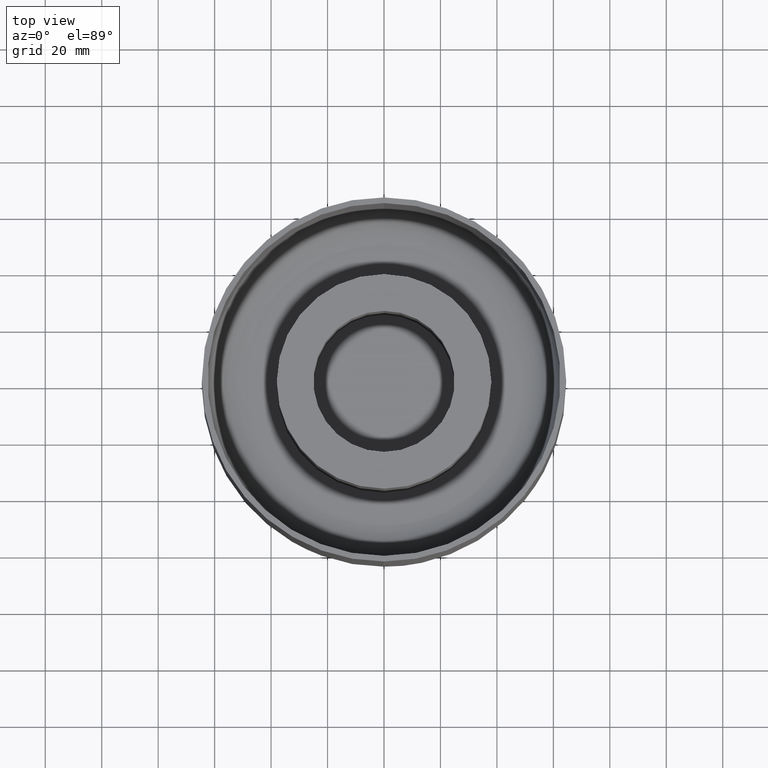
[diagram: clean part render]
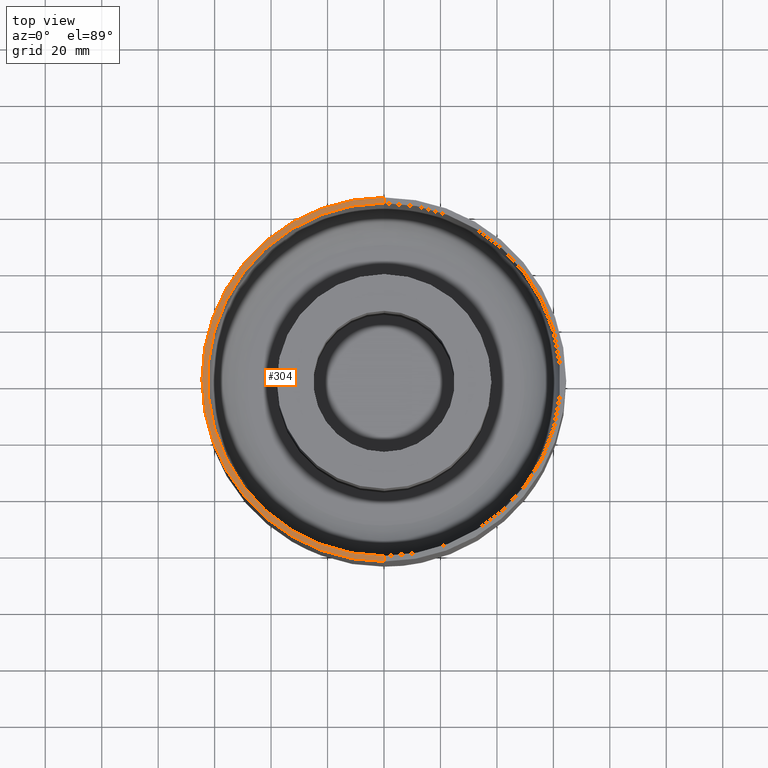
[diagram: same view with one face highlighted and labeled with its STEP entity id]
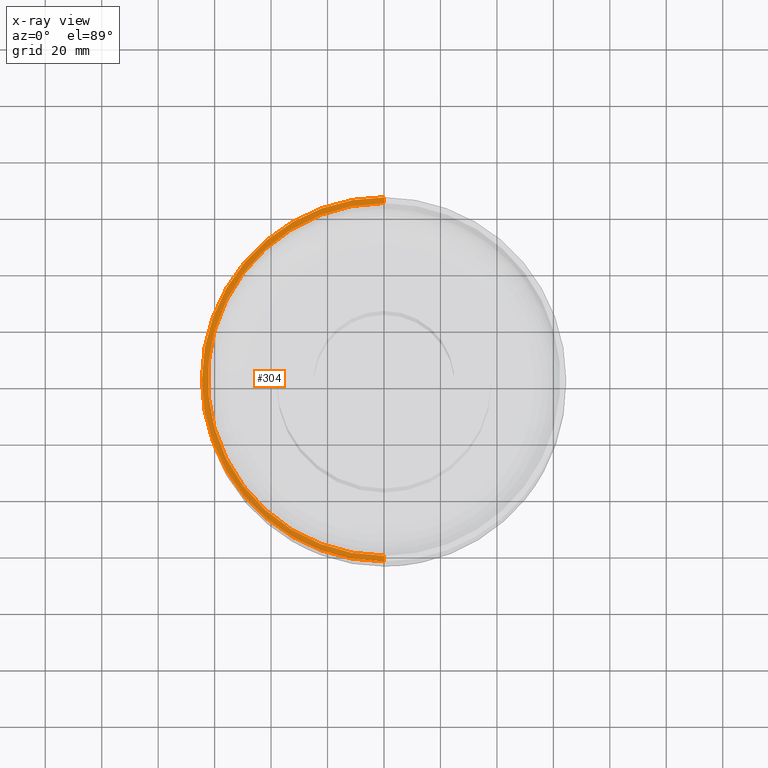
[diagram: x-ray of the same camera — body ghosted, the highlighted face saturated]
A machine part, top view. The second image highlights one B-rep face of the part: STEP entity #304.
The next image is the same camera in x-ray: the body ghosted, the highlighted face saturated — about 0% of this face is hidden behind the body in this view.
In plain terms, the highlighted planar face has unit normal (0, -0, -1).
Its self-contained STEP definition (entity closure, byte-faithful):
#26=PLANE('',#353);
#38=FACE_OUTER_BOUND('',#62,.T.);
#62=EDGE_LOOP('',(#219,#220,#221,#222));
#86=CIRCLE('',#350,64.5000000000002);
#88=CIRCLE('',#354,62.5000000000002);
#103=LINE('',#518,#117);
#104=LINE('',#521,#118);
#117=VECTOR('',#401,304.8);
#118=VECTOR('',#404,304.8);
#143=VERTEX_POINT('',#498);
#144=VERTEX_POINT('',#500);
#145=VERTEX_POINT('',#517);
#146=VERTEX_POINT('',#519);
#170=EDGE_CURVE('',#143,#144,#86,.T.);
#171=EDGE_CURVE('',#145,#143,#103,.T.);
#173=EDGE_CURVE('',#144,#146,#104,.T.);
#174=EDGE_CURVE('',#145,#146,#88,.T.);
#219=ORIENTED_EDGE('',*,*,#170,.T.);
#220=ORIENTED_EDGE('',*,*,#173,.T.);
#221=ORIENTED_EDGE('',*,*,#174,.F.);
#222=ORIENTED_EDGE('',*,*,#171,.T.);
#304=ADVANCED_FACE('',(#38),#26,.F.);
#350=AXIS2_PLACEMENT_3D('',#515,#397,#398);
#353=AXIS2_PLACEMENT_3D('',#522,#405,#406);
#354=AXIS2_PLACEMENT_3D('',#523,#407,#408);
#397=DIRECTION('center_axis',(0.,1.63087261263545E-15,1.));
#398=DIRECTION('ref_axis',(1.61554457443259E-15,-1.,1.57393478095696E-15));
#401=DIRECTION('',(-3.23108914886518E-15,1.,-1.63087261263544E-15));
#404=DIRECTION('',(0.,1.,-1.63087261263545E-15));
#405=DIRECTION('center_axis',(0.,-1.63087261263545E-15,-1.));
#406=DIRECTION('ref_axis',(0.,-1.,1.63087261263545E-15));
#407=DIRECTION('center_axis',(0.,1.63087261263545E-15,1.));
#408=DIRECTION('ref_axis',(1.61554457443259E-15,-1.,1.62430069394758E-15));
#498=CARTESIAN_POINT('',(-2.08405250101804E-13,64.5000000000005,-1.86117787848161E-13));
#500=CARTESIAN_POINT('',(0.,-64.5,1.69197988952874E-14));
#515=CARTESIAN_POINT('Origin',(-1.04202625050902E-13,2.31583910994234E-13,
-8.5265128291212E-14));
#517=CARTESIAN_POINT('',(-2.03037586743449E-13,62.5000000000004,-1.86528532766153E-13));
#518=CARTESIAN_POINT('',(-2.01943071804074E-13,62.5000000000004,-1.86528532766153E-13));
#519=CARTESIAN_POINT('',(0.,-62.4999999999999,1.73305438132791E-14));
#521=CARTESIAN_POINT('',(0.,-64.4999999999999,2.059228903855E-14));
#522=CARTESIAN_POINT('Origin',(0.,2.31583910994234E-13,-8.45989944764369E-14));
#523=CARTESIAN_POINT('Origin',(-1.00971535902037E-13,2.31583910994234E-13,
-8.5265128291212E-14));